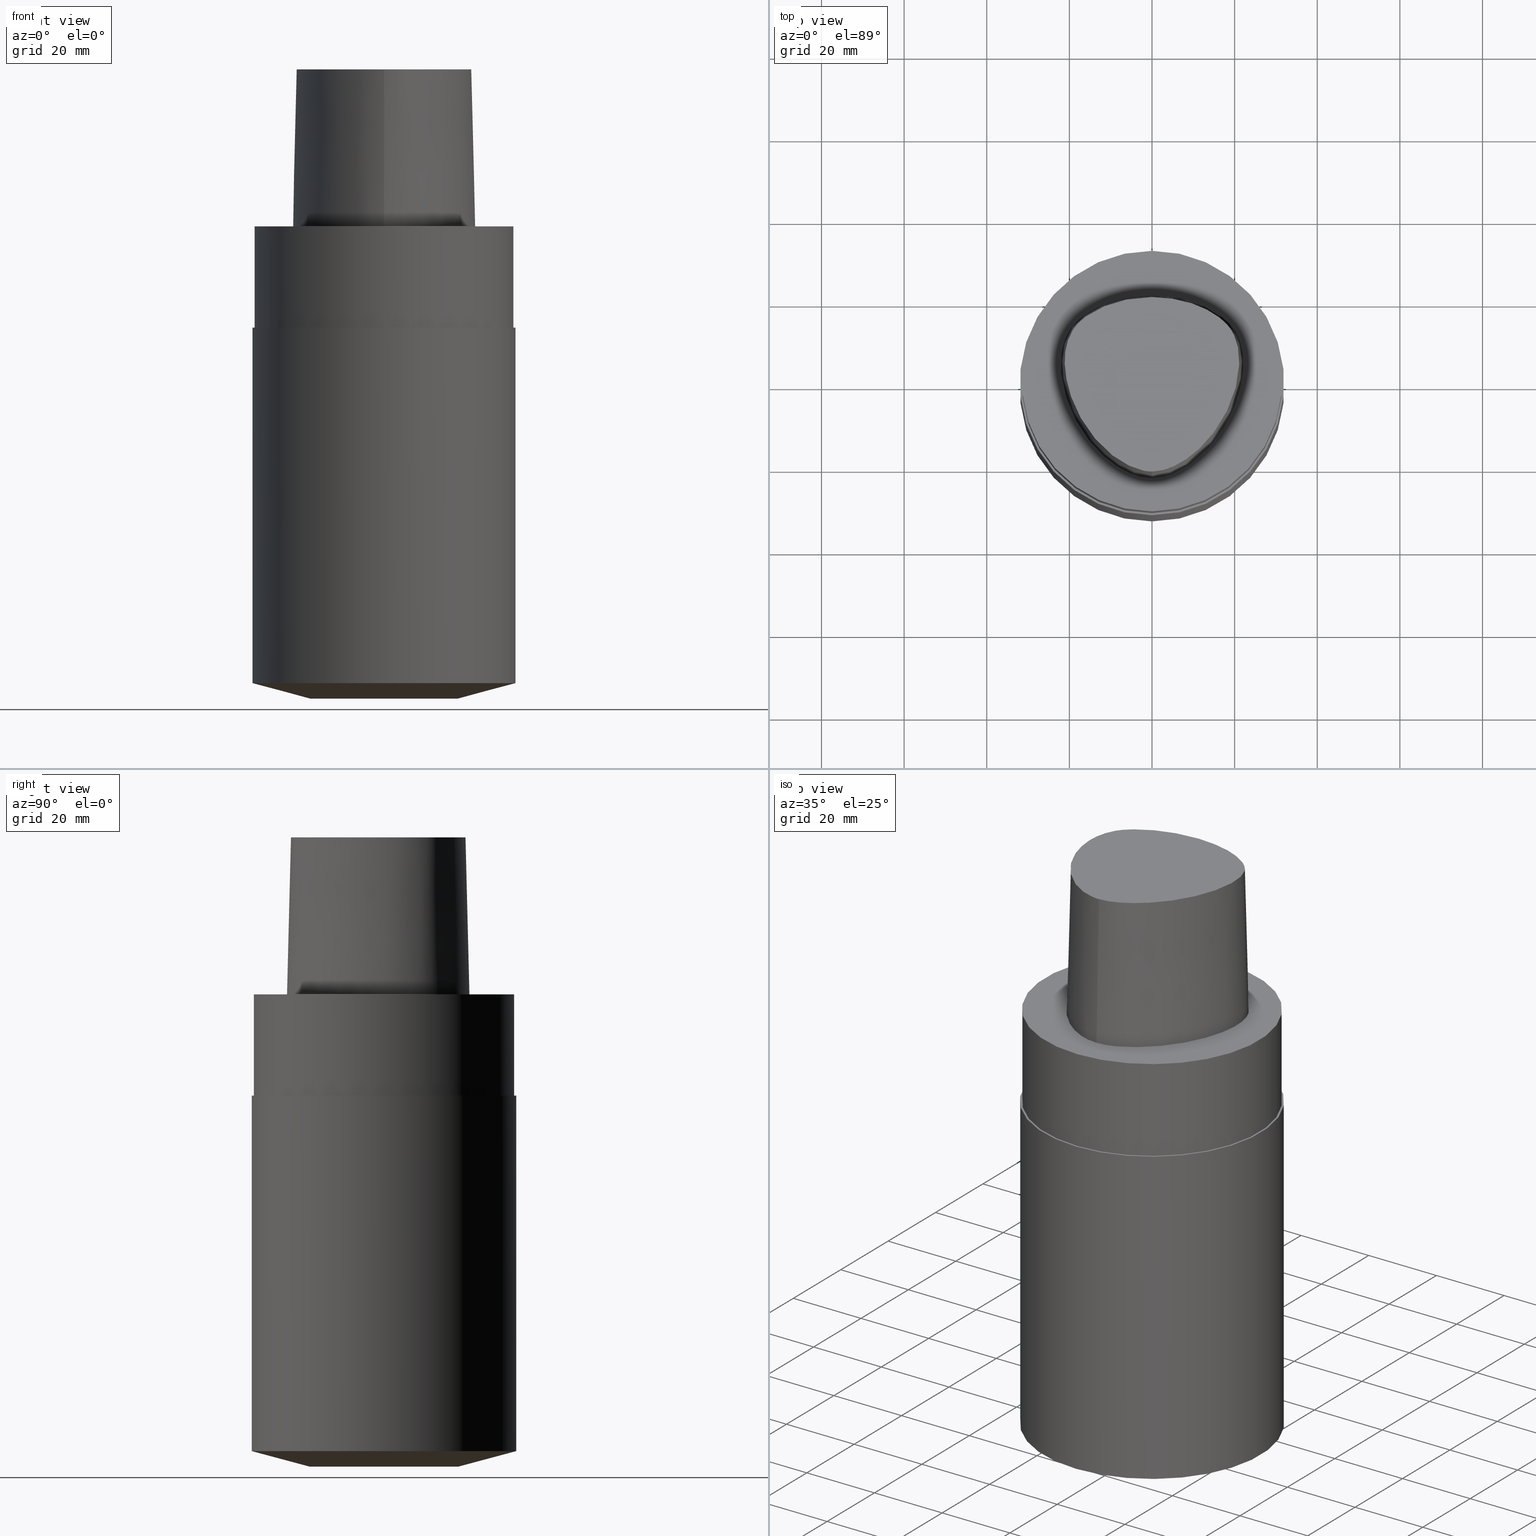
[diagram: canonical four-view strip — front | top / right | iso, engineering-drawing reading convention]
A machine part, canonical four-view strip (front | top / right | iso — engineering-drawing reading convention). The complete STEP part file that produces these views, byte-faithful:
ISO-10303-21;
HEADER;
FILE_DESCRIPTION((''),'1');
FILE_NAME('V:/01_Dxf_Field-HP\X2\FF71FF6FFF8CFF9F5916\X0\2013/BIGKAISER\X2\FF76FF80FF9BFF78FF9E63B28F095206\X0\_BKUS_201803/C6-BSL/C6-BSL1.250-4.5.stp','2018-03-14T07:42:52',(''),(''),'Spatial Interop R21 SP3','Kubotek KeyCreator 2011 V10.0.2 (22737)',' ');
FILE_SCHEMA(('automotive_design'));
ENDSEC;
DATA;
#1=MECHANICAL_DESIGN_GEOMETRIC_PRESENTATION_REPRESENTATION(' ',(#10,#11,#12,#13,#14,#15,#16,#17,#18,#19,#20,#21,#22,#23,#24,#25,#26,#27,#28,#29,#30,#31,#32,#33),#6);
#2=PRODUCT_DEFINITION_CONTEXT('',#34,'design');
#3=APPLICATION_PROTOCOL_DEFINITION('INTERNATIONAL STANDARD','automotive_design',1994,#34);
#4=PRODUCT_CATEGORY_RELATIONSHIP('NONE','NONE',#35,#36);
#5=SHAPE_DEFINITION_REPRESENTATION(#37,#38);
#6= (GEOMETRIC_REPRESENTATION_CONTEXT(3)GLOBAL_UNCERTAINTY_ASSIGNED_CONTEXT((#41))GLOBAL_UNIT_ASSIGNED_CONTEXT((#43,#44,#45))REPRESENTATION_CONTEXT('NONE','WORKSPACE'));
#10=STYLED_ITEM('',(#47),#48);
#11=STYLED_ITEM('',(#49),#50);
#12=STYLED_ITEM('',(#51),#52);
#13=STYLED_ITEM('',(#53),#54);
#14=STYLED_ITEM('',(#55),#56);
#15=STYLED_ITEM('',(#57,#58),#59);
#16=STYLED_ITEM('',(#60),#61);
#17=STYLED_ITEM('',(#62),#63);
#18=STYLED_ITEM('',(#64),#65);
#19=STYLED_ITEM('',(#66,#67),#68);
#20=STYLED_ITEM('',(#69,#70),#71);
#21=STYLED_ITEM('',(#72,#73),#74);
#22=STYLED_ITEM('',(#75,#76),#77);
#23=STYLED_ITEM('',(#78),#79);
#24=STYLED_ITEM('',(#80),#81);
#25=STYLED_ITEM('',(#82,#83),#84);
#26=STYLED_ITEM('',(#85),#86);
#27=STYLED_ITEM('',(#87,#88),#89);
#28=STYLED_ITEM('',(#90,#91),#92);
#29=STYLED_ITEM('',(#93),#94);
#30=STYLED_ITEM('',(#95,#96),#97);
#31=STYLED_ITEM('',(#98),#99);
#32=STYLED_ITEM('',(#100,#101),#102);
#33=STYLED_ITEM('',(#103,#104),#105);
#34=APPLICATION_CONTEXT(' ');
#35=PRODUCT_CATEGORY('part','NONE');
#36=PRODUCT_RELATED_PRODUCT_CATEGORY('detail',' ',(#106));
#37=PRODUCT_DEFINITION_SHAPE('NONE','NONE',#107);
#38=ADVANCED_BREP_SHAPE_REPRESENTATION('Unnamed[1]',(#89,#108),#6);
#41=UNCERTAINTY_MEASURE_WITH_UNIT(LENGTH_MEASURE(1.0E-006),#43,'','');
#43= (CONVERSION_BASED_UNIT('MILLIMETRE',#111)LENGTH_UNIT()NAMED_UNIT(#114));
#44= (NAMED_UNIT(#116)PLANE_ANGLE_UNIT()SI_UNIT($,.RADIAN.));
#45= (NAMED_UNIT(#116)SOLID_ANGLE_UNIT()SI_UNIT($,.STERADIAN.));
#47=PRESENTATION_STYLE_ASSIGNMENT((#122));
#48=EDGE_CURVE('Unnamed[1]',#123,#123,#124,.T.);
#49=PRESENTATION_STYLE_ASSIGNMENT((#125));
#50=EDGE_CURVE('Unnamed[1]',#126,#127,#128,.T.);
#51=PRESENTATION_STYLE_ASSIGNMENT((#129));
#52=EDGE_CURVE('Unnamed[1]',#130,#126,#131,.T.);
#53=PRESENTATION_STYLE_ASSIGNMENT((#132));
#54=EDGE_CURVE('Unnamed[1]',#133,#126,#134,.T.);
#55=PRESENTATION_STYLE_ASSIGNMENT((#135));
#56=EDGE_CURVE('Unnamed[1]',#136,#133,#137,.T.);
#57=PRESENTATION_STYLE_ASSIGNMENT((#138));
#58=PRESENTATION_STYLE_ASSIGNMENT((#139));
#59=ADVANCED_FACE('Unnamed[1]',(#140),#141,.T.);
#60=PRESENTATION_STYLE_ASSIGNMENT((#142));
#61=EDGE_CURVE('Unnamed[1]',#143,#143,#144,.T.);
#62=PRESENTATION_STYLE_ASSIGNMENT((#145));
#63=EDGE_CURVE('Unnamed[1]',#136,#127,#146,.T.);
#64=PRESENTATION_STYLE_ASSIGNMENT((#147));
#65=EDGE_CURVE('Unnamed[1]',#148,#148,#149,.T.);
#66=PRESENTATION_STYLE_ASSIGNMENT((#150));
#67=PRESENTATION_STYLE_ASSIGNMENT((#151));
#68=ADVANCED_FACE('Unnamed[1]',(#152),#153,.T.);
#69=PRESENTATION_STYLE_ASSIGNMENT((#154));
#70=PRESENTATION_STYLE_ASSIGNMENT((#155));
#71=ADVANCED_FACE('Unnamed[1]',(#156,#157),#158,.T.);
#72=PRESENTATION_STYLE_ASSIGNMENT((#159));
#73=PRESENTATION_STYLE_ASSIGNMENT((#160));
#74=ADVANCED_FACE('Unnamed[1]',(#161),#162,.T.);
#75=PRESENTATION_STYLE_ASSIGNMENT((#163));
#76=PRESENTATION_STYLE_ASSIGNMENT((#164));
#77=ADVANCED_FACE('Unnamed[1]',(#165,#166),#167,.T.);
#78=PRESENTATION_STYLE_ASSIGNMENT((#168));
#79=EDGE_CURVE('Unnamed[1]',#127,#130,#169,.T.);
#80=PRESENTATION_STYLE_ASSIGNMENT((#170));
#81=EDGE_CURVE('Unnamed[1]',#136,#130,#171,.T.);
#82=PRESENTATION_STYLE_ASSIGNMENT((#172));
#83=PRESENTATION_STYLE_ASSIGNMENT((#173));
#84=ADVANCED_FACE('Unnamed[1]',(#174,#175),#176,.T.);
#85=PRESENTATION_STYLE_ASSIGNMENT((#177));
#86=EDGE_CURVE('Unnamed[1]',#178,#178,#179,.T.);
#87=PRESENTATION_STYLE_ASSIGNMENT((#180));
#88=PRESENTATION_STYLE_ASSIGNMENT((#181));
#89=MANIFOLD_SOLID_BREP('Unnamed[1]',#182);
#90=PRESENTATION_STYLE_ASSIGNMENT((#183));
#91=PRESENTATION_STYLE_ASSIGNMENT((#184));
#92=ADVANCED_FACE('Unnamed[1]',(#185),#186,.T.);
#93=PRESENTATION_STYLE_ASSIGNMENT((#187));
#94=EDGE_CURVE('Unnamed[1]',#133,#136,#188,.T.);
#95=PRESENTATION_STYLE_ASSIGNMENT((#189));
#96=PRESENTATION_STYLE_ASSIGNMENT((#190));
#97=ADVANCED_FACE('Unnamed[1]',(#191,#192),#193,.T.);
#98=PRESENTATION_STYLE_ASSIGNMENT((#194));
#99=EDGE_CURVE('Unnamed[1]',#195,#195,#196,.T.);
#100=PRESENTATION_STYLE_ASSIGNMENT((#197));
#101=PRESENTATION_STYLE_ASSIGNMENT((#198));
#102=ADVANCED_FACE('Unnamed[1]',(#199),#200,.T.);
#103=PRESENTATION_STYLE_ASSIGNMENT((#201));
#104=PRESENTATION_STYLE_ASSIGNMENT((#202));
#105=ADVANCED_FACE('Unnamed[1]',(#203,#204),#205,.T.);
#106=PRODUCT('Unnamed[1]','Unnamed[1]','PART-Unnamed[1]-DESC',(#206));
#107=PRODUCT_DEFINITION('NONE','NONE',#207,#2);
#108=AXIS2_PLACEMENT_3D('',#208,#209,#210);
#111=LENGTH_MEASURE_WITH_UNIT(LENGTH_MEASURE(1.0),#211);
#114=DIMENSIONAL_EXPONENTS(1.0,0.0,0.0,0.0,0.0,0.0,0.0);
#116=DIMENSIONAL_EXPONENTS(0.0,0.0,0.0,0.0,0.0,0.0,0.0);
#122=CURVE_STYLE('',#212,POSITIVE_LENGTH_MEASURE(1000.0),#213);
#123=VERTEX_POINT('',#214);
#124=CIRCLE('',#215,18.0000000000003);
#125=CURVE_STYLE('',#216,POSITIVE_LENGTH_MEASURE(1000.0),#217);
#126=VERTEX_POINT('',#218);
#127=VERTEX_POINT('',#219);
#128=B_SPLINE_CURVE_WITH_KNOTS('',3,(#220,#221,#222,#223,#224,#225,#226,#227,#228,#229,#230,#231,#232,#233,#234,#235,#236,#237),.UNSPECIFIED.,.F.,.F.,(4,1,1,1,1,1,1,1,1,2,1,1,1,1,4),(-6.6151339308743,-6.20168806019465,-5.78824218951501,-5.37479631883537,-4.96135044815572,-4.13445870679644,-3.30756696543715,-2.89412109475751,-2.48067522407786,-2.06722935339822,-1.65378348271857,-1.24033761203893,-0.826891741359287,-0.413445870679644,0.0),.UNSPECIFIED.);
#129=CURVE_STYLE('',#238,POSITIVE_LENGTH_MEASURE(1000.0),#239);
#130=VERTEX_POINT('',#240);
#131=B_SPLINE_CURVE_WITH_KNOTS('',3,(#241,#242,#243,#244,#245,#246,#247,#248,#249,#250,#251,#252,#253,#254,#255,#256,#257),.UNSPECIFIED.,.F.,.F.,(4,1,1,1,1,1,1,1,1,1,1,1,1,1,4),(-13.2302678617486,-12.816821991069,-12.4033761203893,-11.9899302497097,-11.57648437903,-11.1630385083504,-10.9563155730106,-10.7495926376707,-10.3361467669911,-9.92270089631145,-9.09580915495216,-8.26891741359287,-7.44202567223358,-7.02857980155394,-6.6151339308743),.UNSPECIFIED.);
#132=CURVE_STYLE('',#258,POSITIVE_LENGTH_MEASURE(1000.0),#259);
#133=VERTEX_POINT('',#260);
#134=LINE('',#261,#262);
#135=CURVE_STYLE('',#263,POSITIVE_LENGTH_MEASURE(1000.0),#264);
#136=VERTEX_POINT('',#265);
#137=B_SPLINE_CURVE_WITH_KNOTS('',3,(#266,#267,#268,#269,#270,#271,#272,#273,#274,#275,#276,#277,#278,#279,#280,#281),.UNSPECIFIED.,.F.,.F.,(4,1,1,1,1,1,1,1,1,1,1,1,1,4),(0.0,0.447924670568964,0.9388024242536,1.50591409090711,2.07314340012323,2.72424957442464,3.2253501842849,3.80982102049476,4.34867996267067,4.85900173381144,5.37972031856977,6.03459825488646,6.61113557741484,6.61513393087395),.UNSPECIFIED.);
#138=SURFACE_STYLE_USAGE(.BOTH.,#282);
#139=CURVE_STYLE('',#283,POSITIVE_LENGTH_MEASURE(1000.0),#284);
#140=FACE_OUTER_BOUND('',#285,.T.);
#141=PLANE('',#286);
#142=CURVE_STYLE('',#287,POSITIVE_LENGTH_MEASURE(1000.0),#288);
#143=VERTEX_POINT('',#289);
#144=CIRCLE('',#290,32.0000000000501);
#145=CURVE_STYLE('',#291,POSITIVE_LENGTH_MEASURE(1000.0),#292);
#146=LINE('',#293,#294);
#147=CURVE_STYLE('',#295,POSITIVE_LENGTH_MEASURE(1000.0),#296);
#148=VERTEX_POINT('',#297);
#149=CIRCLE('',#298,31.5);
#150=SURFACE_STYLE_USAGE(.BOTH.,#299);
#151=CURVE_STYLE('',#300,POSITIVE_LENGTH_MEASURE(1000.0),#301);
#152=FACE_OUTER_BOUND('',#302,.T.);
#153=PLANE('',#303);
#154=SURFACE_STYLE_USAGE(.BOTH.,#304);
#155=CURVE_STYLE('',#305,POSITIVE_LENGTH_MEASURE(1000.0),#306);
#156=FACE_BOUND('',#307,.T.);
#157=FACE_BOUND('',#308,.T.);
#158=CONICAL_SURFACE('',#309,25.0000000000252,1.30899693899575);
#159=SURFACE_STYLE_USAGE(.BOTH.,#310);
#160=CURVE_STYLE('',#311,POSITIVE_LENGTH_MEASURE(1000.0),#312);
#161=FACE_OUTER_BOUND('',#313,.T.);
#162=CONICAL_SURFACE('',#314,1.0,0.0249931148600041);
#163=SURFACE_STYLE_USAGE(.BOTH.,#315);
#164=CURVE_STYLE('',#316,POSITIVE_LENGTH_MEASURE(1000.0),#317);
#165=FACE_OUTER_BOUND('',#318,.T.);
#166=FACE_BOUND('',#319,.T.);
#167=PLANE('',#320);
#168=CURVE_STYLE('',#321,POSITIVE_LENGTH_MEASURE(1000.0),#322);
#169=CIRCLE('',#323,0.949936168436318);
#170=CURVE_STYLE('',#324,POSITIVE_LENGTH_MEASURE(1000.0),#325);
#171=LINE('',#326,#327);
#172=SURFACE_STYLE_USAGE(.BOTH.,#328);
#173=CURVE_STYLE('',#329,POSITIVE_LENGTH_MEASURE(1000.0),#330);
#174=FACE_BOUND('',#331,.T.);
#175=FACE_OUTER_BOUND('',#332,.T.);
#176=PLANE('',#333);
#177=CURVE_STYLE('',#334,POSITIVE_LENGTH_MEASURE(1000.0),#335);
#178=VERTEX_POINT('',#336);
#179=CIRCLE('',#337,31.9999999999999);
#180=SURFACE_STYLE_USAGE(.BOTH.,#338);
#181=CURVE_STYLE('',#339,POSITIVE_LENGTH_MEASURE(1000.0),#340);
#182=CLOSED_SHELL('',(#102,#92,#74,#59,#84,#97,#77,#105,#71,#68));
#183=SURFACE_STYLE_USAGE(.BOTH.,#341);
#184=CURVE_STYLE('',#342,POSITIVE_LENGTH_MEASURE(1000.0),#343);
#185=FACE_OUTER_BOUND('',#344,.T.);
#186=B_SPLINE_SURFACE_WITH_KNOTS('',3,3,((#345,#346,#347,#348),(#349,#350,#351,#352),(#353,#354,#355,#356),(#357,#358,#359,#360),(#361,#362,#363,#364),(#365,#366,#367,#368),(#369,#370,#371,#372),(#373,#374,#375,#376),(#377,#378,#379,#380),(#381,#382,#383,#384),(#385,#386,#387,#388),(#389,#390,#391,#392),(#393,#394,#395,#396),(#397,#398,#399,#400),(#401,#402,#403,#404),(#405,#406,#407,#408),(#409,#410,#411,#412),(#413,#414,#415,#416)),.UNSPECIFIED.,.F.,.F.,.F.,(4,1,1,1,1,1,1,1,1,2,1,1,1,1,4),(4,4),(-6.6151339308743,-6.20168806019465,-5.78824218951501,-5.37479631883537,-4.96135044815572,-4.13445870679644,-3.30756696543715,-2.89412109475751,-2.48067522407786,-2.06722935339822,-1.65378348271857,-1.24033761203893,-0.826891741359287,-0.413445870679644,0.0),(-3.8,0.0),.UNSPECIFIED.);
#187=CURVE_STYLE('',#417,POSITIVE_LENGTH_MEASURE(1000.0),#418);
#188=B_SPLINE_CURVE_WITH_KNOTS('',3,(#419,#420,#421,#422,#423,#424,#425,#426,#427,#428,#429,#430,#431,#432,#433,#434),.UNSPECIFIED.,.F.,.F.,(4,1,1,1,1,1,1,1,1,1,1,1,1,4),(6.61513393087476,6.99917207152274,7.48193246986995,7.96289324787093,8.45540287038584,9.10291653679981,9.67129810936083,10.1618749681153,10.6358867802489,11.1080734988593,11.6043706019633,12.09451993853,12.6985979284494,13.2302678617486),.UNSPECIFIED.);
#189=SURFACE_STYLE_USAGE(.BOTH.,#435);
#190=CURVE_STYLE('',#436,POSITIVE_LENGTH_MEASURE(1000.0),#437);
#191=FACE_BOUND('',#438,.T.);
#192=FACE_BOUND('',#439,.T.);
#193=CYLINDRICAL_SURFACE('',#440,31.5);
#194=CURVE_STYLE('',#441,POSITIVE_LENGTH_MEASURE(1000.0),#442);
#195=VERTEX_POINT('',#443);
#196=CIRCLE('',#444,31.5);
#197=SURFACE_STYLE_USAGE(.BOTH.,#445);
#198=CURVE_STYLE('',#446,POSITIVE_LENGTH_MEASURE(1000.0),#447);
#199=FACE_OUTER_BOUND('',#448,.T.);
#200=B_SPLINE_SURFACE_WITH_KNOTS('',3,3,((#449,#450,#451,#452),(#453,#454,#455,#456),(#457,#458,#459,#460),(#461,#462,#463,#464),(#465,#466,#467,#468),(#469,#470,#471,#472),(#473,#474,#475,#476),(#477,#478,#479,#480),(#481,#482,#483,#484),(#485,#486,#487,#488),(#489,#490,#491,#492),(#493,#494,#495,#496),(#497,#498,#499,#500),(#501,#502,#503,#504),(#505,#506,#507,#508),(#509,#510,#511,#512),(#513,#514,#515,#516)),.UNSPECIFIED.,.F.,.F.,.F.,(4,1,1,1,1,1,1,1,1,1,1,1,1,1,4),(4,4),(-13.2302678617486,-12.816821991069,-12.4033761203893,-11.9899302497097,-11.57648437903,-11.1630385083504,-10.9563155730106,-10.7495926376707,-10.3361467669911,-9.92270089631145,-9.09580915495216,-8.26891741359287,-7.44202567223358,-7.02857980155394,-6.6151339308743),(-3.8,0.0),.UNSPECIFIED.);
#201=SURFACE_STYLE_USAGE(.BOTH.,#517);
#202=CURVE_STYLE('',#518,POSITIVE_LENGTH_MEASURE(1000.0),#519);
#203=FACE_BOUND('',#520,.T.);
#204=FACE_BOUND('',#521,.T.);
#205=CYLINDRICAL_SURFACE('',#522,32.000000000025);
#206=PRODUCT_CONTEXT('',#34,'mechanical');
#207=PRODUCT_DEFINITION_FORMATION_WITH_SPECIFIED_SOURCE(' ','NONE',#106,.NOT_KNOWN.);
#208=CARTESIAN_POINT('',(0.0,0.0,0.0));
#209=DIRECTION('',(0.0,0.0,1.0));
#210=DIRECTION('',(1.0,0.0,0.0));
#211= (NAMED_UNIT(#114)LENGTH_UNIT()SI_UNIT(.MILLI.,.METRE.));
#212=DRAUGHTING_PRE_DEFINED_CURVE_FONT('continuous');
#213=COLOUR_RGB('',0.0,1.0,0.0);
#214=CARTESIAN_POINT('',(6.99885645712713E-015,18.0000000000003,-114.3));
#215=AXIS2_PLACEMENT_3D('',#524,#525,#526);
#216=DRAUGHTING_PRE_DEFINED_CURVE_FONT('continuous');
#217=COLOUR_RGB('',0.0,1.0,0.0);
#218=CARTESIAN_POINT('',(0.04359356758149,-23.4691235068931,7.78075697532443E-032));
#219=CARTESIAN_POINT('',(-0.045171994691285,20.6766009553285,1.6755590516169E-031));
#220=CARTESIAN_POINT('',(0.04359356758149,-23.4691235068931,7.78075697532443E-032));
#221=CARTESIAN_POINT('',(-1.4714994713963,-23.4767895315797,2.46519032881566E-032));
#222=CARTESIAN_POINT('',(-4.43923476371401,-22.821149804767,-4.93038065763132E-032));
#223=CARTESIAN_POINT('',(-8.35043230079961,-20.8000751253325,-9.86076131526265E-032));
#224=CARTESIAN_POINT('',(-11.744900222602,-18.1556117874078,-1.97215226305253E-031));
#225=CARTESIAN_POINT('',(-15.6989602501314,-14.0406306929147,-1.97215226305253E-031));
#226=CARTESIAN_POINT('',(-19.5352875070682,-8.00624990770787,1.97215226305253E-031));
#227=CARTESIAN_POINT('',(-21.7205626190491,-1.16081708945282,0.0));
#228=CARTESIAN_POINT('',(-22.2486616783342,4.54965558738736,0.0));
#229=CARTESIAN_POINT('',(-21.6646421256468,9.00229539124618,0.0));
#230=CARTESIAN_POINT('',(-20.3945635471922,11.7780544971003,0.0));
#231=CARTESIAN_POINT('',(-18.5925528034471,14.1980602922581,0.0));
#232=CARTESIAN_POINT('',(-16.3226584122258,16.1777748720707,0.0));
#233=CARTESIAN_POINT('',(-12.5076407874579,18.2524201541303,9.86076131526265E-032));
#234=CARTESIAN_POINT('',(-8.46776192107786,19.679114377952,9.86076131526265E-032));
#235=CARTESIAN_POINT('',(-4.23043497193604,20.487781597334,1.97215226305253E-031));
#236=CARTESIAN_POINT('',(-1.42313094248379,20.6127745766442,1.10933564796705E-031));
#237=CARTESIAN_POINT('',(-0.045171994691285,20.6766009553285,1.6755590516169E-031));
#238=DRAUGHTING_PRE_DEFINED_CURVE_FONT('continuous');
#239=COLOUR_RGB('',0.0,1.0,0.0);
#240=CARTESIAN_POINT('',(0.044682985379347,20.6765087343109,1.61778115328528E-031));
#241=CARTESIAN_POINT('',(0.044682985379347,20.6765087343109,1.61778115328528E-031));
#242=CARTESIAN_POINT('',(1.42379272427753,20.6097915814392,8.62816615085482E-032));
#243=CARTESIAN_POINT('',(4.2230955003445,20.4837538303966,1.4791141972894E-031));
#244=CARTESIAN_POINT('',(8.47220762821777,19.6890432607088,9.86076131526265E-032));
#245=CARTESIAN_POINT('',(12.5141247708253,18.2434968480404,0.0));
#246=CARTESIAN_POINT('',(16.3038624872874,16.1734192182143,1.97215226305253E-031));
#247=CARTESIAN_POINT('',(19.1446913988473,13.7036723639434,-1.97215226305253E-031));
#248=CARTESIAN_POINT('',(20.7319894342149,11.1014620996188,0.0));
#249=CARTESIAN_POINT('',(21.7831756505763,8.28099229708081,-1.97215226305253E-031));
#250=CARTESIAN_POINT('',(22.2258240701438,4.60865440596506,0.0));
#251=CARTESIAN_POINT('',(21.7436130080666,-1.11326526354485,0.0));
#252=CARTESIAN_POINT('',(19.5519487660502,-7.95432366164584,0.0));
#253=CARTESIAN_POINT('',(14.9574167123838,-15.2089785567293,0.0));
#254=CARTESIAN_POINT('',(9.66840283021945,-20.0827414369705,-9.86076131526265E-032));
#255=CARTESIAN_POINT('',(4.51628650521788,-22.7946374572188,-9.86076131526265E-032));
#256=CARTESIAN_POINT('',(1.55867251738073,-23.4612972770043,-1.23259516440783E-032));
#257=CARTESIAN_POINT('',(0.04359356758149,-23.4691235068931,7.78075697532443E-032));
#258=DRAUGHTING_PRE_DEFINED_CURVE_FONT('continuous');
#259=COLOUR_RGB('',0.0,1.0,0.0);
#260=CARTESIAN_POINT('',(0.038736923393866,-22.5191997536361,38.0));
#261=CARTESIAN_POINT('',(0.038736923393866,-22.5191997536361,38.0));
#262=VECTOR('',#527,38.0118715498723);
#263=DRAUGHTING_PRE_DEFINED_CURVE_FONT('continuous');
#264=COLOUR_RGB('',0.0,1.0,0.0);
#265=CARTESIAN_POINT('',(-0.001218547003662,19.7276821925089,38.0));
#266=CARTESIAN_POINT('',(-0.001218547003662,19.7276821925089,38.0));
#267=CARTESIAN_POINT('',(-1.49408492138443,19.6585333605309,38.0));
#268=CARTESIAN_POINT('',(-4.62297391420352,19.513604770166,38.0));
#269=CARTESIAN_POINT('',(-9.56160616752212,18.4291575730197,38.0));
#270=CARTESIAN_POINT('',(-14.5427684976927,16.2697452580488,38.0));
#271=CARTESIAN_POINT('',(-19.4315563551602,12.5302108980807,38.0));
#272=CARTESIAN_POINT('',(-21.306358833612,6.76352894547076,38.0));
#273=CARTESIAN_POINT('',(-21.0724946936277,0.957075236984038,38.0));
#274=CARTESIAN_POINT('',(-19.7876470880144,-4.34628503581652,38.0));
#275=CARTESIAN_POINT('',(-17.5396999600095,-9.33314444653089,38.0));
#276=CARTESIAN_POINT('',(-14.645447733857,-13.7185760345629,38.0));
#277=CARTESIAN_POINT('',(-10.7996726536643,-17.856257282137,38.0));
#278=CARTESIAN_POINT('',(-6.00479510196376,-21.2687382067675,38.0));
#279=CARTESIAN_POINT('',(-1.90747171908525,-22.5250621415864,38.0));
#280=CARTESIAN_POINT('',(0.025424107066464,-22.5192678176378,38.0));
#281=CARTESIAN_POINT('',(0.038736923394311,-22.519199753636,38.0));
#282=SURFACE_SIDE_STYLE('',(#528));
#283=DRAUGHTING_PRE_DEFINED_CURVE_FONT('continuous');
#284=COLOUR_RGB('',0.0,1.0,0.0);
#285=EDGE_LOOP('',(#529,#530));
#286=AXIS2_PLACEMENT_3D('',#531,#532,#533);
#287=DRAUGHTING_PRE_DEFINED_CURVE_FONT('continuous');
#288=COLOUR_RGB('',0.0,1.0,0.0);
#289=CARTESIAN_POINT('',(6.76915627253489E-015,32.0000000000502,-110.548711305951));
#290=AXIS2_PLACEMENT_3D('',#534,#535,#536);
#291=DRAUGHTING_PRE_DEFINED_CURVE_FONT('continuous');
#292=COLOUR_RGB('',0.0,1.0,0.0);
#293=CARTESIAN_POINT('',(-0.001218547003662,19.7276821925089,38.0));
#294=VECTOR('',#537,38.0118715498723);
#295=DRAUGHTING_PRE_DEFINED_CURVE_FONT('continuous');
#296=COLOUR_RGB('',0.0,1.0,0.0);
#297=CARTESIAN_POINT('',(-3.88267476788467E-031,31.5,3.85763741731416E-015));
#298=AXIS2_PLACEMENT_3D('',#538,#539,#540);
#299=SURFACE_SIDE_STYLE('',(#541));
#300=DRAUGHTING_PRE_DEFINED_CURVE_FONT('continuous');
#301=COLOUR_RGB('',0.0,1.0,0.0);
#302=EDGE_LOOP('',(#542));
#303=AXIS2_PLACEMENT_3D('',#543,#544,#545);
#304=SURFACE_SIDE_STYLE('',(#546));
#305=DRAUGHTING_PRE_DEFINED_CURVE_FONT('continuous');
#306=COLOUR_RGB('',0.0,1.0,0.0);
#307=EDGE_LOOP('',(#547));
#308=EDGE_LOOP('',(#548));
#309=AXIS2_PLACEMENT_3D('',#549,#550,#551);
#310=SURFACE_SIDE_STYLE('',(#552));
#311=DRAUGHTING_PRE_DEFINED_CURVE_FONT('continuous');
#312=COLOUR_RGB('',0.0,1.0,0.0);
#313=EDGE_LOOP('',(#553,#554,#555));
#314=AXIS2_PLACEMENT_3D('',#556,#557,#558);
#315=SURFACE_SIDE_STYLE('',(#559));
#316=DRAUGHTING_PRE_DEFINED_CURVE_FONT('continuous');
#317=COLOUR_RGB('',0.0,1.0,0.0);
#318=EDGE_LOOP('',(#560));
#319=EDGE_LOOP('',(#561));
#320=AXIS2_PLACEMENT_3D('',#562,#563,#564);
#321=DRAUGHTING_PRE_DEFINED_CURVE_FONT('continuous');
#322=COLOUR_RGB('',0.0,1.0,0.0);
#323=AXIS2_PLACEMENT_3D('',#565,#566,#567);
#324=DRAUGHTING_PRE_DEFINED_CURVE_FONT('continuous');
#325=COLOUR_RGB('',0.0,1.0,0.0);
#326=CARTESIAN_POINT('',(-0.001218547003662,19.7276821925089,38.0));
#327=VECTOR('',#568,38.0118715503078);
#328=SURFACE_SIDE_STYLE('',(#569));
#329=DRAUGHTING_PRE_DEFINED_CURVE_FONT('continuous');
#330=COLOUR_RGB('',0.0,1.0,0.0);
#331=EDGE_LOOP('',(#570,#571,#572));
#332=EDGE_LOOP('',(#573));
#333=AXIS2_PLACEMENT_3D('',#574,#575,#576);
#334=DRAUGHTING_PRE_DEFINED_CURVE_FONT('continuous');
#335=COLOUR_RGB('',0.0,1.0,0.0);
#336=CARTESIAN_POINT('',(1.50019232895551E-015,31.9999999999999,-24.5));
#337=AXIS2_PLACEMENT_3D('',#577,#578,#579);
#338=SURFACE_SIDE_STYLE('',(#580));
#339=DRAUGHTING_PRE_DEFINED_CURVE_FONT('continuous');
#340=COLOUR_RGB('',0.0,1.0,0.0);
#341=SURFACE_SIDE_STYLE('',(#581));
#342=DRAUGHTING_PRE_DEFINED_CURVE_FONT('continuous');
#343=COLOUR_RGB('',0.0,1.0,0.0);
#344=EDGE_LOOP('',(#582,#583,#584,#585));
#345=CARTESIAN_POINT('',(0.038736923393866,-22.5191997536361,38.0));
#346=CARTESIAN_POINT('',(0.04035580478973,-22.8358410047159,25.3333333333066));
#347=CARTESIAN_POINT('',(0.041974686185626,-23.1524822558133,12.6666666666934));
#348=CARTESIAN_POINT('',(0.04359356758149,-23.4691235068931,7.78075697532443E-032));
#349=CARTESIAN_POINT('',(-1.33786123484754,-22.5261650259856,38.0));
#350=CARTESIAN_POINT('',(-1.38240731367927,-22.8430399310626,25.3333333333066));
#351=CARTESIAN_POINT('',(-1.42695339249092,-23.1599147815484,12.6666666666934));
#352=CARTESIAN_POINT('',(-1.4714994713963,-23.4767895315797,2.46519032881566E-032));
#353=CARTESIAN_POINT('',(-4.08909358431842,-21.9268839879558,38.0));
#354=CARTESIAN_POINT('',(-4.20580731135515,-22.2249725500078,25.3333333333066));
#355=CARTESIAN_POINT('',(-4.32252104640446,-22.5230611651922,12.6666666666934));
#356=CARTESIAN_POINT('',(-4.43923476371401,-22.821149804767,-4.93038065763132E-032));
#357=CARTESIAN_POINT('',(-7.8333083619947,-19.9973514861616,38.0));
#358=CARTESIAN_POINT('',(-8.00568301809614,-20.2649260859405,25.3333333333066));
#359=CARTESIAN_POINT('',(-8.1780576640789,-20.532500564315,12.6666666666934));
#360=CARTESIAN_POINT('',(-8.35043230079961,-20.8000751253325,-9.86076131526265E-032));
#361=CARTESIAN_POINT('',(-11.1035071147626,-17.450554957873,38.0));
#362=CARTESIAN_POINT('',(-11.3173048160562,-17.6855739222454,25.3333333333066));
#363=CARTESIAN_POINT('',(-11.5311025116181,-17.9205928617968,12.6666666666934));
#364=CARTESIAN_POINT('',(-11.744900222602,-18.1556117874078,-1.97215226305253E-031));
#365=CARTESIAN_POINT('',(-14.9379535189057,-13.461132049697,38.0));
#366=CARTESIAN_POINT('',(-15.191622410671,-13.6542981711372,25.3333333333066));
#367=CARTESIAN_POINT('',(-15.4452913389853,-13.8474645327131,12.6666666666934));
#368=CARTESIAN_POINT('',(-15.6989602501314,-14.0406306929147,-1.97215226305253E-031));
#369=CARTESIAN_POINT('',(-18.6681263017223,-7.59391757463204,38.0));
#370=CARTESIAN_POINT('',(-18.9571800800711,-7.73136168081928,25.3333333333066));
#371=CARTESIAN_POINT('',(-19.2462337287194,-7.86880572399774,12.6666666666934));
#372=CARTESIAN_POINT('',(-19.5352875070682,-8.00624990770787,1.97215226305253E-031));
#373=CARTESIAN_POINT('',(-20.7857899858339,-0.952862819790525,38.0));
#374=CARTESIAN_POINT('',(-21.0973808305434,-1.02218087467418,25.3333333333066));
#375=CARTESIAN_POINT('',(-21.408971677436,-1.09149899580772,12.6666666666934));
#376=CARTESIAN_POINT('',(-21.7205626190491,-1.16081708945282,0.0));
#377=CARTESIAN_POINT('',(-21.2911760556836,4.5469215763113,38.0));
#378=CARTESIAN_POINT('',(-21.610337904926,4.54783292082248,25.3333333333066));
#379=CARTESIAN_POINT('',(-21.9294998290918,4.54874426225691,12.6666666666934));
#380=CARTESIAN_POINT('',(-22.2486616783342,4.54965558738736,0.0));
#381=CARTESIAN_POINT('',(-20.7345309521958,8.74909381391006,38.0));
#382=CARTESIAN_POINT('',(-21.0445680426217,8.83349432450556,25.3333333333066));
#383=CARTESIAN_POINT('',(-21.3546050933631,8.91789488065068,12.6666666666934));
#384=CARTESIAN_POINT('',(-21.6646421256468,9.00229539124618,0.0));
#385=CARTESIAN_POINT('',(-19.5531512296439,11.3174844040833,38.0));
#386=CARTESIAN_POINT('',(-19.8336219699984,11.4710077674213,25.3333333333066));
#387=CARTESIAN_POINT('',(-20.1140927680763,11.6245311337623,12.6666666666934));
#388=CARTESIAN_POINT('',(-20.3945635471922,11.7780544971003,0.0));
#389=CARTESIAN_POINT('',(-17.9100913688793,13.524027510437,38.0));
#390=CARTESIAN_POINT('',(-18.1375785458768,13.7487051053655,25.3333333333066));
#391=CARTESIAN_POINT('',(-18.365065665211,13.9733826973296,12.6666666666934));
#392=CARTESIAN_POINT('',(-18.5925528034471,14.1980602922581,0.0));
#393=CARTESIAN_POINT('',(-15.7996349656398,15.3762170634413,38.0));
#394=CARTESIAN_POINT('',(-15.9739761051783,15.6434029846179,25.3333333333066));
#395=CARTESIAN_POINT('',(-16.1483172726872,15.9105889315134,12.6666666666934));
#396=CARTESIAN_POINT('',(-16.3226584122258,16.1777748720707,0.0));
#397=CARTESIAN_POINT('',(-12.1175640002064,17.3825162484012,38.0));
#398=CARTESIAN_POINT('',(-12.2475895903055,17.6724842099619,25.3333333333066));
#399=CARTESIAN_POINT('',(-12.3776152070492,17.9624521925696,12.6666666666934));
#400=CARTESIAN_POINT('',(-12.5076407874579,18.2524201541303,9.86076131526265E-032));
#401=CARTESIAN_POINT('',(-8.21761151654222,18.7588585989994,38.0));
#402=CARTESIAN_POINT('',(-8.30099497910627,19.0656105427881,25.3333333333066));
#403=CARTESIAN_POINT('',(-8.38437843913309,19.3723624535439,12.6666666666934));
#404=CARTESIAN_POINT('',(-8.46776192107786,19.679114377952,9.86076131526265E-032));
#405=CARTESIAN_POINT('',(-4.13466093881225,19.5396850837055,38.0));
#406=CARTESIAN_POINT('',(-4.16658562115465,19.8557172636973,25.3333333333066));
#407=CARTESIAN_POINT('',(-4.19851029939059,20.1717494367229,12.6666666666934));
#408=CARTESIAN_POINT('',(-4.23043497193604,20.487781597334,1.97215226305253E-031));
#409=CARTESIAN_POINT('',(-1.37917220403684,19.6638560588908,38.0));
#410=CARTESIAN_POINT('',(-1.39382511685176,19.98016223565,25.3333333333066));
#411=CARTESIAN_POINT('',(-1.40847802945569,20.296468399885,12.6666666666934));
#412=CARTESIAN_POINT('',(-1.42313094248379,20.6127745766442,1.10933564796705E-031));
#413=CARTESIAN_POINT('',(-0.001218547003662,19.7276821925089,38.0));
#414=CARTESIAN_POINT('',(-0.015869696232855,20.043988446791,25.3333333333066));
#415=CARTESIAN_POINT('',(-0.030520845462092,20.3602947010464,12.6666666666934));
#416=CARTESIAN_POINT('',(-0.045171994691285,20.6766009553285,1.6755590516169E-031));
#417=DRAUGHTING_PRE_DEFINED_CURVE_FONT('continuous');
#418=COLOUR_RGB('',0.0,1.0,0.0);
#419=CARTESIAN_POINT('',(0.038736923394311,-22.519199753636,38.0));
#420=CARTESIAN_POINT('',(1.31742058183662,-22.512662269405,38.0));
#421=CARTESIAN_POINT('',(4.2093773447498,-21.9116226439989,38.0));
#422=CARTESIAN_POINT('',(8.20895504542113,-19.7798683845067,38.0));
#423=CARTESIAN_POINT('',(11.9784633234593,-16.681663904162,38.0));
#424=CARTESIAN_POINT('',(15.5308821579362,-12.5807487594113,38.0));
#425=CARTESIAN_POINT('',(18.4566248438667,-7.64932246015528,38.0));
#426=CARTESIAN_POINT('',(20.4036090752029,-2.27012499825289,38.0));
#427=CARTESIAN_POINT('',(21.2357187429189,2.79891401173156,38.0));
#428=CARTESIAN_POINT('',(21.0811206267748,7.62543090736657,38.0));
#429=CARTESIAN_POINT('',(19.3383577336563,12.2772250726194,38.0));
#430=CARTESIAN_POINT('',(15.5796322014404,15.5799672120682,38.0));
#431=CARTESIAN_POINT('',(10.8392956074438,17.9834601687347,38.0));
#432=CARTESIAN_POINT('',(5.56068045850571,19.4586143858472,38.0));
#433=CARTESIAN_POINT('',(1.77223893711014,19.6418877095654,38.0));
#434=CARTESIAN_POINT('',(-0.001218367817519,19.7276822012873,38.0));
#435=SURFACE_SIDE_STYLE('',(#586));
#436=DRAUGHTING_PRE_DEFINED_CURVE_FONT('continuous');
#437=COLOUR_RGB('',0.0,1.0,0.0);
#438=EDGE_LOOP('',(#587));
#439=EDGE_LOOP('',(#588));
#440=AXIS2_PLACEMENT_3D('',#589,#590,#591);
#441=DRAUGHTING_PRE_DEFINED_CURVE_FONT('continuous');
#442=COLOUR_RGB('',0.0,1.0,0.0);
#443=CARTESIAN_POINT('',(1.50019232895551E-015,31.5,-24.5));
#444=AXIS2_PLACEMENT_3D('',#592,#593,#594);
#445=SURFACE_SIDE_STYLE('',(#595));
#446=DRAUGHTING_PRE_DEFINED_CURVE_FONT('continuous');
#447=COLOUR_RGB('',0.0,1.0,0.0);
#448=EDGE_LOOP('',(#596,#597,#598,#599));
#449=CARTESIAN_POINT('',(-0.001218367817519,19.7276822012873,38.0));
#450=CARTESIAN_POINT('',(0.014082083248157,20.0439577123075,25.3333333333066));
#451=CARTESIAN_POINT('',(0.029382534313671,20.3602332232908,12.6666666666934));
#452=CARTESIAN_POINT('',(0.044682985379347,20.6765087343109,1.61778115328528E-031));
#453=CARTESIAN_POINT('',(1.37788651195108,19.6609652834875,38.0));
#454=CARTESIAN_POINT('',(1.3931885827258,19.9772407169847,25.3333333333066));
#455=CARTESIAN_POINT('',(1.40849065356095,20.2935162254648,12.6666666666934));
#456=CARTESIAN_POINT('',(1.42379272427753,20.6097915814392,8.62816615085482E-032));
#457=CARTESIAN_POINT('',(4.135446440878,19.5347778787784,38.0));
#458=CARTESIAN_POINT('',(4.16466278851883,19.8511031866125,25.3333333333066));
#459=CARTESIAN_POINT('',(4.1938791526746,20.1674284644204,12.6666666666934));
#460=CARTESIAN_POINT('',(4.2230955003445,20.4837538303966,1.4791141972894E-031));
#461=CARTESIAN_POINT('',(8.213607363795,18.7706026638736,38.0));
#462=CARTESIAN_POINT('',(8.29980745008421,19.0767495109635,25.3333333333066));
#463=CARTESIAN_POINT('',(8.38600751285747,19.3828964329996,12.6666666666934));
#464=CARTESIAN_POINT('',(8.47220762821777,19.6890432607088,9.86076131526265E-032));
#465=CARTESIAN_POINT('',(12.1316338645671,17.3698624840857,38.0));
#466=CARTESIAN_POINT('',(12.2591308270381,17.6610739397708,25.3333333333066));
#467=CARTESIAN_POINT('',(12.3866278083543,17.9522853923553,12.6666666666934));
#468=CARTESIAN_POINT('',(12.5141247708253,18.2434968480404,0.0));
#469=CARTESIAN_POINT('',(15.7706546153679,15.3789501349612,38.0));
#470=CARTESIAN_POINT('',(15.9483905900895,15.6437731794811,25.3333333333066));
#471=CARTESIAN_POINT('',(16.1261265513272,15.9085961736944,12.6666666666934));
#472=CARTESIAN_POINT('',(16.3038624872874,16.1734192182143,1.97215226305253E-031));
#473=CARTESIAN_POINT('',(18.4265894256284,13.0570022172893,38.0));
#474=CARTESIAN_POINT('',(18.6659567517146,13.2725589420689,25.3333333333066));
#475=CARTESIAN_POINT('',(18.9053240921419,13.4881156488541,12.6666666666934));
#476=CARTESIAN_POINT('',(19.1446913988473,13.7036723639434,-1.97215226305253E-031));
#477=CARTESIAN_POINT('',(19.8679958653038,10.6923771981998,38.0));
#478=CARTESIAN_POINT('',(20.1559937048299,10.8287388264873,25.3333333333066));
#479=CARTESIAN_POINT('',(20.4439915656177,10.965100461641,12.6666666666934));
#480=CARTESIAN_POINT('',(20.7319894342149,11.1014620996188,0.0));
#481=CARTESIAN_POINT('',(20.8470867582337,8.07149548576131,38.0));
#482=CARTESIAN_POINT('',(21.1591164072431,8.14132775555392,25.3333333333066));
#483=CARTESIAN_POINT('',(21.4711459821861,8.21116003697855,12.6666666666934));
#484=CARTESIAN_POINT('',(21.7831756505763,8.28099229708081,-1.97215226305253E-031));
#485=CARTESIAN_POINT('',(21.2693244256982,4.61157245650171,38.0));
#486=CARTESIAN_POINT('',(21.5881576801997,4.6105997689982,25.3333333333066));
#487=CARTESIAN_POINT('',(21.9069908544037,4.60962709346857,12.6666666666934));
#488=CARTESIAN_POINT('',(22.2258240701438,4.60865440596506,0.0));
#489=CARTESIAN_POINT('',(20.8071610855575,-0.912828649855193,38.0));
#490=CARTESIAN_POINT('',(21.119311671178,-0.979640884839481,25.3333333333066));
#491=CARTESIAN_POINT('',(21.4314624224461,-1.04645306732201,12.6666666666934));
#492=CARTESIAN_POINT('',(21.7436130080666,-1.11326526354485,0.0));
#493=CARTESIAN_POINT('',(18.6841935581315,-7.54428794252837,38.0));
#494=CARTESIAN_POINT('',(18.9734452551861,-7.6809665891091,25.3333333333066));
#495=CARTESIAN_POINT('',(19.2626970689956,-7.81764505382656,12.6666666666934));
#496=CARTESIAN_POINT('',(19.5519487660502,-7.95432366164584,0.0));
#497=CARTESIAN_POINT('',(14.2175552814,-14.5971504342323,38.0));
#498=CARTESIAN_POINT('',(14.4641757465198,-14.8010930946929,25.3333333333066));
#499=CARTESIAN_POINT('',(14.710796247264,-15.0050359737917,12.6666666666934));
#500=CARTESIAN_POINT('',(14.9574167123838,-15.2089785567293,0.0));
#501=CARTESIAN_POINT('',(9.0844808732933,-19.3179298129689,38.0));
#502=CARTESIAN_POINT('',(9.27912152349017,-19.572866915557,25.3333333333066));
#503=CARTESIAN_POINT('',(9.47376218971294,-19.827804295621,12.6666666666934));
#504=CARTESIAN_POINT('',(9.66840283021945,-20.0827414369705,-9.86076131526265E-032));
#505=CARTESIAN_POINT('',(4.17112919194182,-21.8987568152736,38.0));
#506=CARTESIAN_POINT('',(4.28618163483998,-22.1973837173649,25.3333333333066));
#507=CARTESIAN_POINT('',(4.40123406239433,-22.4960105163661,12.6666666666934));
#508=CARTESIAN_POINT('',(4.51628650521788,-22.7946374572188,-9.86076131526265E-032));
#509=CARTESIAN_POINT('',(1.41533654381097,-22.5120888467812,38.0));
#510=CARTESIAN_POINT('',(1.46311520162011,-22.8284916374445,25.3333333333066));
#511=CARTESIAN_POINT('',(1.51089385942236,-23.144894486341,12.6666666666934));
#512=CARTESIAN_POINT('',(1.55867251738073,-23.4612972770043,-1.23259516440783E-032));
#513=CARTESIAN_POINT('',(0.038736923393866,-22.5191997536361,38.0));
#514=CARTESIAN_POINT('',(0.04035580478973,-22.8358410047159,25.3333333333066));
#515=CARTESIAN_POINT('',(0.041974686185626,-23.1524822558133,12.6666666666934));
#516=CARTESIAN_POINT('',(0.04359356758149,-23.4691235068931,7.78075697532443E-032));
#517=SURFACE_SIDE_STYLE('',(#600));
#518=DRAUGHTING_PRE_DEFINED_CURVE_FONT('continuous');
#519=COLOUR_RGB('',0.0,1.0,0.0);
#520=EDGE_LOOP('',(#601));
#521=EDGE_LOOP('',(#602));
#522=AXIS2_PLACEMENT_3D('',#603,#604,#605);
#524=CARTESIAN_POINT('',(6.99885645712713E-015,1.39977129142543E-014,-114.3));
#525=DIRECTION('',(6.12323399573677E-017,1.22464679914735E-016,-1.0));
#526=DIRECTION('',(-1.23259516440783E-032,1.0,1.22464679914735E-016));
#527=DIRECTION('',(0.000127766510556,-0.024990186342461,-0.999687688361864));
#528=SURFACE_STYLE_FILL_AREA(#606);
#529=ORIENTED_EDGE('',*,*,#56,.T.);
#530=ORIENTED_EDGE('',*,*,#94,.T.);
#531=CARTESIAN_POINT('',(0.008647668684817,1.77491953635526,38.0));
#532=DIRECTION('',(-0.0,2.95577857036584E-049,1.0));
#533=DIRECTION('',(1.0,0.0,0.0));
#534=CARTESIAN_POINT('',(6.76915627253489E-015,1.35383125450698E-014,-110.548711305951));
#535=DIRECTION('',(6.12323399573676E-017,1.22464679914735E-016,-1.0));
#536=DIRECTION('',(-1.23259516440783E-032,1.0,1.22464679914735E-016));
#537=DIRECTION('',(-0.001156308434589,0.02496374748543,-0.999687688361864));
#538=CARTESIAN_POINT('',(0.0,0.0,0.0));
#539=DIRECTION('',(6.12323399573677E-017,1.22464679914735E-016,-1.0));
#540=DIRECTION('',(-1.23259516440783E-032,1.0,1.22464679914735E-016));
#541=SURFACE_STYLE_FILL_AREA(#607);
#542=ORIENTED_EDGE('',*,*,#48,.T.);
#543=CARTESIAN_POINT('',(6.99885645712713E-015,9.00000000000015,-114.3));
#544=DIRECTION('',(6.12323399573677E-017,1.22464679914735E-016,-1.0));
#545=DIRECTION('',(-1.23259516440783E-032,1.0,1.22464679914735E-016));
#546=SURFACE_STYLE_FILL_AREA(#608);
#547=ORIENTED_EDGE('',*,*,#48,.F.);
#548=ORIENTED_EDGE('',*,*,#61,.T.);
#549=CARTESIAN_POINT('',(6.88400636483101E-015,1.3768012729662E-014,-112.424355652976));
#550=DIRECTION('',(-6.12323399573677E-017,-1.22464679914735E-016,1.0));
#551=DIRECTION('',(-1.23259516440783E-032,1.0,1.22464679914735E-016));
#552=SURFACE_STYLE_FILL_AREA(#609);
#553=ORIENTED_EDGE('',*,*,#79,.F.);
#554=ORIENTED_EDGE('',*,*,#63,.F.);
#555=ORIENTED_EDGE('',*,*,#81,.T.);
#556=CARTESIAN_POINT('',(-0.001218547003662,19.7276821925089,-2.00268782779425));
#557=DIRECTION('',(2.1678647975542E-051,-3.42380273908985E-049,-1.0));
#558=DIRECTION('',(-0.046269895968506,0.99892897481606,-3.42113882891801E-049));
#559=SURFACE_STYLE_FILL_AREA(#610);
#560=ORIENTED_EDGE('',*,*,#86,.F.);
#561=ORIENTED_EDGE('',*,*,#99,.T.);
#562=CARTESIAN_POINT('',(1.50019232895551E-015,31.7499999999999,-24.5));
#563=DIRECTION('',(-6.12323399573677E-017,-1.22464679914735E-016,1.0));
#564=DIRECTION('',(1.23259516440783E-032,-1.0,-1.22464679914735E-016));
#565=CARTESIAN_POINT('',(-0.001218547003662,19.7276821925089,1.97178046083078E-015));
#566=DIRECTION('',(6.12323399573677E-017,1.22464679914735E-016,-1.0));
#567=DIRECTION('',(-0.046269895968506,0.998928974816059,1.19500303158668E-016));
#568=DIRECTION('',(0.001207557810519,0.024961321374199,-0.999687688350411));
#569=SURFACE_STYLE_FILL_AREA(#611);
#570=ORIENTED_EDGE('',*,*,#52,.T.);
#571=ORIENTED_EDGE('',*,*,#50,.T.);
#572=ORIENTED_EDGE('',*,*,#79,.T.);
#573=ORIENTED_EDGE('',*,*,#65,.F.);
#574=CARTESIAN_POINT('',(-1.94133738394233E-031,15.75,1.92881870865708E-015));
#575=DIRECTION('',(-6.12323399573677E-017,-1.22464679914735E-016,1.0));
#576=DIRECTION('',(1.23259516440783E-032,-1.0,-1.22464679914735E-016));
#577=CARTESIAN_POINT('',(1.50019232895551E-015,3.00038465791101E-015,-24.5));
#578=DIRECTION('',(6.12323399573677E-017,1.22464679914735E-016,-1.0));
#579=DIRECTION('',(-1.23259516440783E-032,1.0,1.22464679914735E-016));
#580=SURFACE_STYLE_FILL_AREA(#612);
#581=SURFACE_STYLE_FILL_AREA(#613);
#582=ORIENTED_EDGE('',*,*,#50,.F.);
#583=ORIENTED_EDGE('',*,*,#54,.F.);
#584=ORIENTED_EDGE('',*,*,#56,.F.);
#585=ORIENTED_EDGE('',*,*,#63,.T.);
#586=SURFACE_STYLE_FILL_AREA(#614);
#587=ORIENTED_EDGE('',*,*,#99,.F.);
#588=ORIENTED_EDGE('',*,*,#65,.T.);
#589=CARTESIAN_POINT('',(7.50096164477754E-016,1.50019232895551E-015,-12.25));
#590=DIRECTION('',(6.12323399573677E-017,1.22464679914735E-016,-1.0));
#591=DIRECTION('',(-1.23259516440783E-032,1.0,1.22464679914735E-016));
#592=CARTESIAN_POINT('',(1.50019232895551E-015,3.00038465791101E-015,-24.5));
#593=DIRECTION('',(6.12323399573677E-017,1.22464679914735E-016,-1.0));
#594=DIRECTION('',(-1.23259516440783E-032,1.0,1.22464679914735E-016));
#595=SURFACE_STYLE_FILL_AREA(#615);
#596=ORIENTED_EDGE('',*,*,#52,.F.);
#597=ORIENTED_EDGE('',*,*,#81,.F.);
#598=ORIENTED_EDGE('',*,*,#94,.F.);
#599=ORIENTED_EDGE('',*,*,#54,.T.);
#600=SURFACE_STYLE_FILL_AREA(#616);
#601=ORIENTED_EDGE('',*,*,#61,.F.);
#602=ORIENTED_EDGE('',*,*,#86,.T.);
#603=CARTESIAN_POINT('',(4.1346743007452E-015,8.26934860149039E-015,-67.5243556529755));
#604=DIRECTION('',(6.12323399573677E-017,1.22464679914735E-016,-1.0));
#605=DIRECTION('',(-1.23259516440783E-032,1.0,1.22464679914735E-016));
#606=FILL_AREA_STYLE('',(#617));
#607=FILL_AREA_STYLE('',(#618));
#608=FILL_AREA_STYLE('',(#619));
#609=FILL_AREA_STYLE('',(#620));
#610=FILL_AREA_STYLE('',(#621));
#611=FILL_AREA_STYLE('',(#622));
#612=FILL_AREA_STYLE('',(#623));
#613=FILL_AREA_STYLE('',(#624));
#614=FILL_AREA_STYLE('',(#625));
#615=FILL_AREA_STYLE('',(#626));
#616=FILL_AREA_STYLE('',(#627));
#617=FILL_AREA_STYLE_COLOUR('',#628);
#618=FILL_AREA_STYLE_COLOUR('',#629);
#619=FILL_AREA_STYLE_COLOUR('',#630);
#620=FILL_AREA_STYLE_COLOUR('',#631);
#621=FILL_AREA_STYLE_COLOUR('',#632);
#622=FILL_AREA_STYLE_COLOUR('',#633);
#623=FILL_AREA_STYLE_COLOUR('',#634);
#624=FILL_AREA_STYLE_COLOUR('',#635);
#625=FILL_AREA_STYLE_COLOUR('',#636);
#626=FILL_AREA_STYLE_COLOUR('',#637);
#627=FILL_AREA_STYLE_COLOUR('',#638);
#628=COLOUR_RGB('',0.0,1.0,0.0);
#629=COLOUR_RGB('',0.0,1.0,0.0);
#630=COLOUR_RGB('',0.0,1.0,0.0);
#631=COLOUR_RGB('',0.0,1.0,0.0);
#632=COLOUR_RGB('',0.0,1.0,0.0);
#633=COLOUR_RGB('',0.0,1.0,0.0);
#634=COLOUR_RGB('',0.0,1.0,0.0);
#635=COLOUR_RGB('',0.0,1.0,0.0);
#636=COLOUR_RGB('',0.0,1.0,0.0);
#637=COLOUR_RGB('',0.0,1.0,0.0);
#638=COLOUR_RGB('',0.0,1.0,0.0);
ENDSEC;
END-ISO-10303-21;
